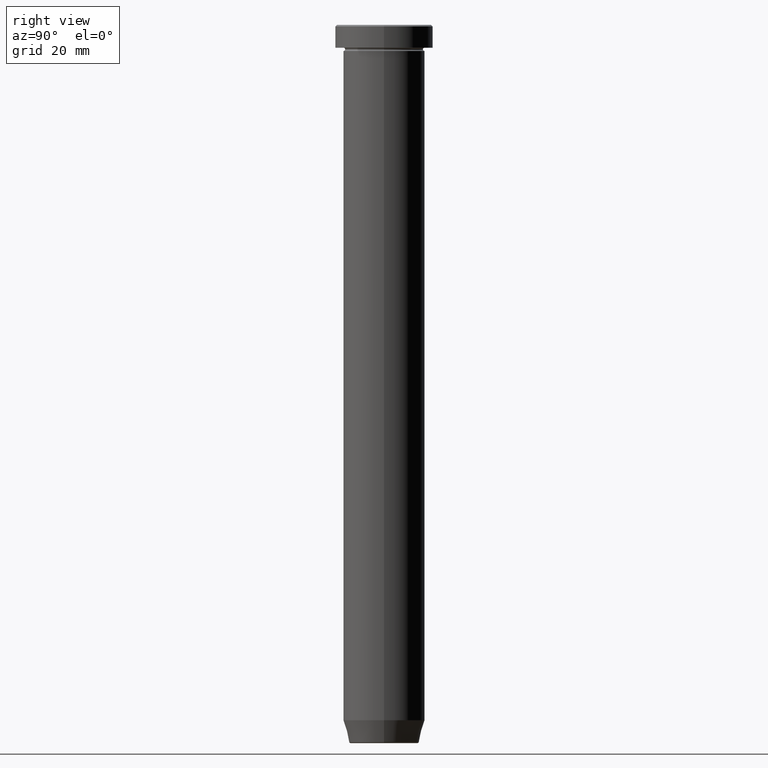
[diagram: clean part render]
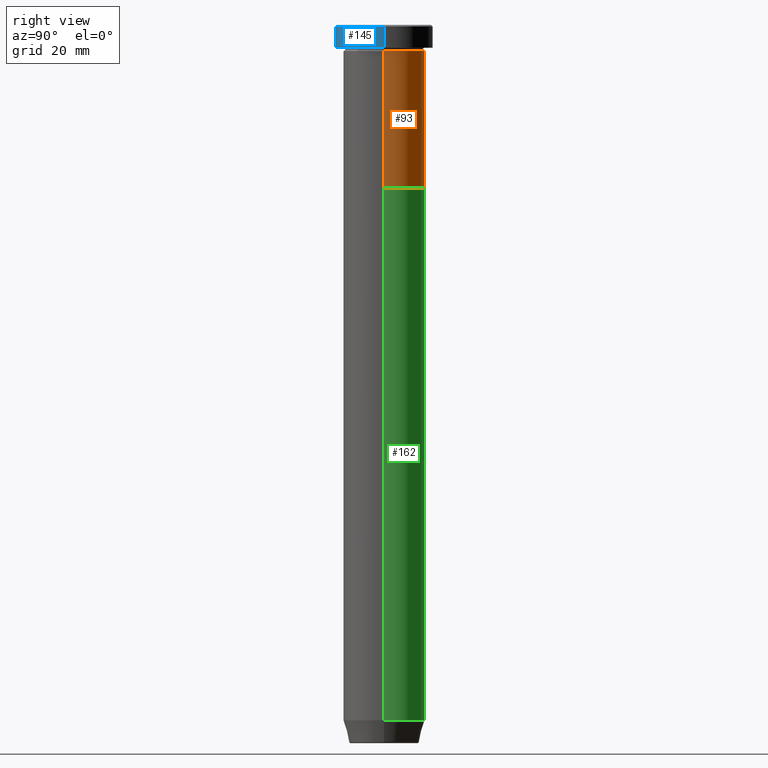
[diagram: same view with three faces highlighted in distinct colors, each labeled with its STEP entity id]
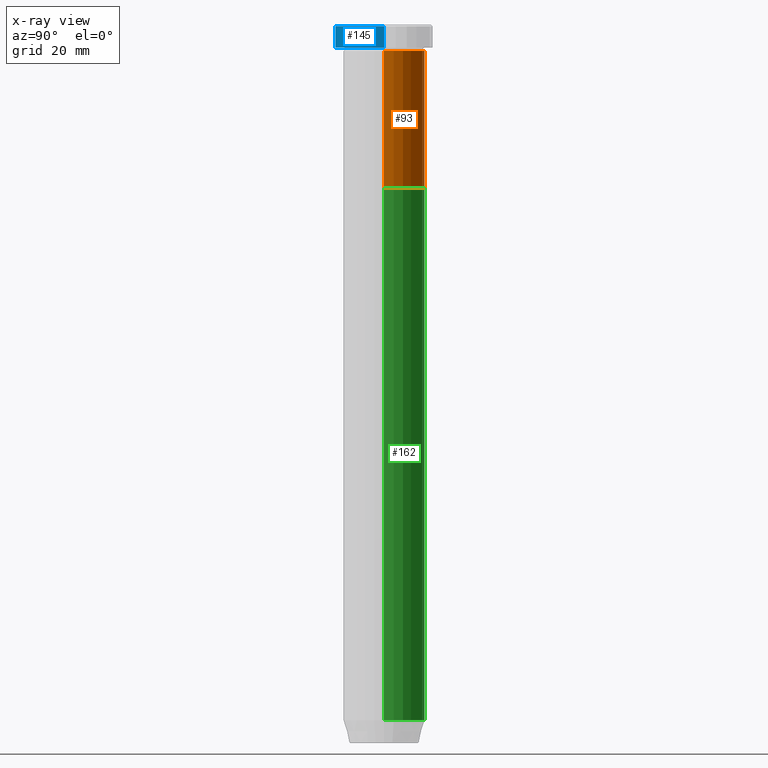
[diagram: x-ray of the same camera — body ghosted, the three highlighted faces saturated]
A machine part, right view with three faces highlighted in distinct colors.
The next image is the same camera in x-ray (body ghosted, the three faces saturated) — at least one of them is partly hidden behind the body in this view.
Their STEP definitions:

[orange] entity #93 — the highlighted cylindrical surface (partial cylindrical patch) has radius 12.5 mm, axis along (-0, -0, 1).
#4 = DIRECTION ( 'NONE',  ( 1.000000000000000000, 0.000000000000000000, 0.000000000000000000 ) ) ;
#15 = AXIS2_PLACEMENT_3D ( 'NONE', #563, #238, #292 ) ;
#36 = EDGE_LOOP ( 'NONE', ( #411, #404, #197, #329 ) ) ;
#51 = EDGE_CURVE ( 'NONE', #553, #264, #233, .T. ) ;
#55 = EDGE_CURVE ( 'NONE', #264, #439, #360, .T. ) ;
#87 = CARTESIAN_POINT ( 'NONE',  ( 0.000000000000000000, 0.000000000000000000, -50.00000000000000000 ) ) ;
#88 = VECTOR ( 'NONE', #230, 1000.000000000000000 ) ;
#90 = FACE_OUTER_BOUND ( 'NONE', #36, .T. ) ;
#92 = AXIS2_PLACEMENT_3D ( 'NONE', #410, #593, #4 ) ;
#93 = ADVANCED_FACE ( 'NONE', ( #90 ), #274, .T. ) ;
#116 = AXIS2_PLACEMENT_3D ( 'NONE', #87, #136, #184 ) ;
#118 = CARTESIAN_POINT ( 'NONE',  ( 12.50000000000000000, 0.000000000000000000, 0.000000000000000000 ) ) ;
#136 = DIRECTION ( 'NONE',  ( -0.000000000000000000, -0.000000000000000000, 1.000000000000000000 ) ) ;
#184 = DIRECTION ( 'NONE',  ( 1.000000000000000000, 0.000000000000000000, 0.000000000000000000 ) ) ;
#197 = ORIENTED_EDGE ( 'NONE', *, *, #390, .F. ) ;
#210 = DIRECTION ( 'NONE',  ( -0.000000000000000000, -0.000000000000000000, 1.000000000000000000 ) ) ;
#230 = DIRECTION ( 'NONE',  ( -0.000000000000000000, -0.000000000000000000, 1.000000000000000000 ) ) ;
#233 = CIRCLE ( 'NONE', #116, 12.50000000000000000 ) ;
#238 = DIRECTION ( 'NONE',  ( -0.000000000000000000, -0.000000000000000000, 1.000000000000000000 ) ) ;
#264 = VERTEX_POINT ( 'NONE', #268 ) ;
#268 = CARTESIAN_POINT ( 'NONE',  ( -12.50000000000000000, 1.530808498934191521E-15, -50.00000000000000000 ) ) ;
#274 = CYLINDRICAL_SURFACE ( 'NONE', #92, 12.50000000000000000 ) ;
#292 = DIRECTION ( 'NONE',  ( 1.000000000000000000, 0.000000000000000000, 0.000000000000000000 ) ) ;
#329 = ORIENTED_EDGE ( 'NONE', *, *, #335, .F. ) ;
#335 = EDGE_CURVE ( 'NONE', #553, #527, #346, .T. ) ;
#346 = LINE ( 'NONE', #118, #549 ) ;
#360 = LINE ( 'NONE', #367, #88 ) ;
#367 = CARTESIAN_POINT ( 'NONE',  ( -12.50000000000000000, 1.530808498934191521E-15, 0.000000000000000000 ) ) ;
#390 = EDGE_CURVE ( 'NONE', #527, #439, #536, .T. ) ;
#404 = ORIENTED_EDGE ( 'NONE', *, *, #55, .T. ) ;
#410 = CARTESIAN_POINT ( 'NONE',  ( 0.000000000000000000, 0.000000000000000000, 0.000000000000000000 ) ) ;
#411 = ORIENTED_EDGE ( 'NONE', *, *, #51, .T. ) ;
#439 = VERTEX_POINT ( 'NONE', #548 ) ;
#496 = CARTESIAN_POINT ( 'NONE',  ( 12.50000000000000000, 0.000000000000000000, -8.000000000000000000 ) ) ;
#527 = VERTEX_POINT ( 'NONE', #496 ) ;
#531 = CARTESIAN_POINT ( 'NONE',  ( 12.50000000000000000, 0.000000000000000000, -50.00000000000000000 ) ) ;
#536 = CIRCLE ( 'NONE', #15, 12.50000000000000000 ) ;
#548 = CARTESIAN_POINT ( 'NONE',  ( -12.50000000000000000, 1.530808498934191521E-15, -8.000000000000000000 ) ) ;
#549 = VECTOR ( 'NONE', #210, 1000.000000000000000 ) ;
#553 = VERTEX_POINT ( 'NONE', #531 ) ;
#563 = CARTESIAN_POINT ( 'NONE',  ( 0.000000000000000000, 0.000000000000000000, -8.000000000000000000 ) ) ;
#593 = DIRECTION ( 'NONE',  ( -0.000000000000000000, -0.000000000000000000, 1.000000000000000000 ) ) ;

[blue] entity #145 — the highlighted cylindrical surface (partial cylindrical patch) has radius 15 mm, axis along (-0, -0, 1).
#21 = DIRECTION ( 'NONE',  ( 1.000000000000000000, 0.000000000000000000, 0.000000000000000000 ) ) ;
#24 = CYLINDRICAL_SURFACE ( 'NONE', #266, 15.00000000000000000 ) ;
#29 = FACE_OUTER_BOUND ( 'NONE', #331, .T. ) ;
#32 = EDGE_CURVE ( 'NONE', #133, #340, #263, .T. ) ;
#40 = VERTEX_POINT ( 'NONE', #555 ) ;
#52 = ORIENTED_EDGE ( 'NONE', *, *, #502, .F. ) ;
#105 = CARTESIAN_POINT ( 'NONE',  ( 0.000000000000000000, 0.000000000000000000, 0.000000000000000000 ) ) ;
#110 = LINE ( 'NONE', #437, #327 ) ;
#133 = VERTEX_POINT ( 'NONE', #375 ) ;
#143 = DIRECTION ( 'NONE',  ( -0.000000000000000000, -0.000000000000000000, 1.000000000000000000 ) ) ;
#145 = ADVANCED_FACE ( 'NONE', ( #29 ), #24, .T. ) ;
#159 = DIRECTION ( 'NONE',  ( 1.000000000000000000, 0.000000000000000000, 0.000000000000000000 ) ) ;
#212 = ORIENTED_EDGE ( 'NONE', *, *, #470, .T. ) ;
#229 = ORIENTED_EDGE ( 'NONE', *, *, #32, .T. ) ;
#239 = VECTOR ( 'NONE', #143, 1000.000000000000000 ) ;
#240 = EDGE_CURVE ( 'NONE', #581, #133, #506, .T. ) ;
#262 = CARTESIAN_POINT ( 'NONE',  ( 0.000000000000000000, 0.000000000000000000, -0.4999999999999831246 ) ) ;
#263 = LINE ( 'NONE', #320, #239 ) ;
#266 = AXIS2_PLACEMENT_3D ( 'NONE', #105, #384, #529 ) ;
#291 = CIRCLE ( 'NONE', #318, 15.00000000000000000 ) ;
#317 = AXIS2_PLACEMENT_3D ( 'NONE', #474, #428, #21 ) ;
#318 = AXIS2_PLACEMENT_3D ( 'NONE', #262, #530, #159 ) ;
#320 = CARTESIAN_POINT ( 'NONE',  ( 15.00000000000000000, 0.000000000000000000, 0.000000000000000000 ) ) ;
#325 = ORIENTED_EDGE ( 'NONE', *, *, #240, .T. ) ;
#327 = VECTOR ( 'NONE', #444, 1000.000000000000000 ) ;
#331 = EDGE_LOOP ( 'NONE', ( #52, #325, #229, #212 ) ) ;
#340 = VERTEX_POINT ( 'NONE', #507 ) ;
#375 = CARTESIAN_POINT ( 'NONE',  ( 15.00000000000000000, 0.000000000000000000, -6.999999999999999112 ) ) ;
#384 = DIRECTION ( 'NONE',  ( -0.000000000000000000, -0.000000000000000000, 1.000000000000000000 ) ) ;
#428 = DIRECTION ( 'NONE',  ( -0.000000000000000000, -0.000000000000000000, 1.000000000000000000 ) ) ;
#437 = CARTESIAN_POINT ( 'NONE',  ( -15.00000000000000000, 1.836970198721029589E-15, 0.000000000000000000 ) ) ;
#444 = DIRECTION ( 'NONE',  ( -0.000000000000000000, -0.000000000000000000, 1.000000000000000000 ) ) ;
#470 = EDGE_CURVE ( 'NONE', #340, #40, #291, .T. ) ;
#474 = CARTESIAN_POINT ( 'NONE',  ( 0.000000000000000000, 0.000000000000000000, -6.999999999999999112 ) ) ;
#493 = CARTESIAN_POINT ( 'NONE',  ( -15.00000000000000000, 1.836970198721029589E-15, -6.999999999999999112 ) ) ;
#502 = EDGE_CURVE ( 'NONE', #581, #40, #110, .T. ) ;
#506 = CIRCLE ( 'NONE', #317, 15.00000000000000000 ) ;
#507 = CARTESIAN_POINT ( 'NONE',  ( 15.00000000000000000, 0.000000000000000000, -0.4999999999999831246 ) ) ;
#529 = DIRECTION ( 'NONE',  ( 1.000000000000000000, 0.000000000000000000, 0.000000000000000000 ) ) ;
#530 = DIRECTION ( 'NONE',  ( 0.000000000000000000, 0.000000000000000000, -1.000000000000000000 ) ) ;
#555 = CARTESIAN_POINT ( 'NONE',  ( -15.00000000000000000, 1.836970198721029589E-15, -0.4999999999999831246 ) ) ;
#581 = VERTEX_POINT ( 'NONE', #493 ) ;

[green] entity #162 — the highlighted cylindrical surface (partial cylindrical patch) has radius 12.5 mm, axis along (-0, -0, 1).
#16 = CIRCLE ( 'NONE', #135, 12.50000000000000000 ) ;
#17 = EDGE_CURVE ( 'NONE', #226, #66, #248, .T. ) ;
#25 = CIRCLE ( 'NONE', #466, 12.50000000000000000 ) ;
#59 = CARTESIAN_POINT ( 'NONE',  ( 12.50000000000000000, 0.000000000000000000, -50.00000000000000000 ) ) ;
#66 = VERTEX_POINT ( 'NONE', #270 ) ;
#69 = DIRECTION ( 'NONE',  ( 1.000000000000000000, 0.000000000000000000, 0.000000000000000000 ) ) ;
#79 = DIRECTION ( 'NONE',  ( -0.000000000000000000, -0.000000000000000000, 1.000000000000000000 ) ) ;
#80 = VECTOR ( 'NONE', #224, 1000.000000000000000 ) ;
#120 = CARTESIAN_POINT ( 'NONE',  ( 0.000000000000000000, 0.000000000000000000, 0.000000000000000000 ) ) ;
#121 = VERTEX_POINT ( 'NONE', #59 ) ;
#135 = AXIS2_PLACEMENT_3D ( 'NONE', #174, #309, #361 ) ;
#162 = ADVANCED_FACE ( 'NONE', ( #337 ), #201, .T. ) ;
#174 = CARTESIAN_POINT ( 'NONE',  ( 0.000000000000000000, 0.000000000000000000, -213.0000000000000284 ) ) ;
#194 = VECTOR ( 'NONE', #356, 1000.000000000000000 ) ;
#201 = CYLINDRICAL_SURFACE ( 'NONE', #219, 12.50000000000000000 ) ;
#219 = AXIS2_PLACEMENT_3D ( 'NONE', #120, #436, #69 ) ;
#224 = DIRECTION ( 'NONE',  ( -0.000000000000000000, -0.000000000000000000, 1.000000000000000000 ) ) ;
#226 = VERTEX_POINT ( 'NONE', #293 ) ;
#248 = LINE ( 'NONE', #408, #80 ) ;
#270 = CARTESIAN_POINT ( 'NONE',  ( -12.50000000000000000, 1.530808498934191521E-15, -50.00000000000000000 ) ) ;
#293 = CARTESIAN_POINT ( 'NONE',  ( -12.50000000000000000, 1.530808498934191521E-15, -213.0000000000000284 ) ) ;
#294 = CARTESIAN_POINT ( 'NONE',  ( 12.50000000000000000, 0.000000000000000000, -213.0000000000000284 ) ) ;
#309 = DIRECTION ( 'NONE',  ( -0.000000000000000000, -0.000000000000000000, 1.000000000000000000 ) ) ;
#337 = FACE_OUTER_BOUND ( 'NONE', #371, .T. ) ;
#356 = DIRECTION ( 'NONE',  ( -0.000000000000000000, -0.000000000000000000, 1.000000000000000000 ) ) ;
#361 = DIRECTION ( 'NONE',  ( 1.000000000000000000, 0.000000000000000000, 0.000000000000000000 ) ) ;
#362 = ORIENTED_EDGE ( 'NONE', *, *, #17, .T. ) ;
#371 = EDGE_LOOP ( 'NONE', ( #477, #362, #451, #462 ) ) ;
#408 = CARTESIAN_POINT ( 'NONE',  ( -12.50000000000000000, 1.530808498934191521E-15, 0.000000000000000000 ) ) ;
#424 = EDGE_CURVE ( 'NONE', #121, #66, #25, .T. ) ;
#436 = DIRECTION ( 'NONE',  ( -0.000000000000000000, -0.000000000000000000, 1.000000000000000000 ) ) ;
#451 = ORIENTED_EDGE ( 'NONE', *, *, #424, .F. ) ;
#462 = ORIENTED_EDGE ( 'NONE', *, *, #562, .F. ) ;
#466 = AXIS2_PLACEMENT_3D ( 'NONE', #487, #79, #528 ) ;
#477 = ORIENTED_EDGE ( 'NONE', *, *, #590, .T. ) ;
#487 = CARTESIAN_POINT ( 'NONE',  ( 0.000000000000000000, 0.000000000000000000, -50.00000000000000000 ) ) ;
#489 = CARTESIAN_POINT ( 'NONE',  ( 12.50000000000000000, 0.000000000000000000, 0.000000000000000000 ) ) ;
#505 = VERTEX_POINT ( 'NONE', #294 ) ;
#528 = DIRECTION ( 'NONE',  ( 1.000000000000000000, 0.000000000000000000, 0.000000000000000000 ) ) ;
#537 = LINE ( 'NONE', #489, #194 ) ;
#562 = EDGE_CURVE ( 'NONE', #505, #121, #537, .T. ) ;
#590 = EDGE_CURVE ( 'NONE', #505, #226, #16, .T. ) ;